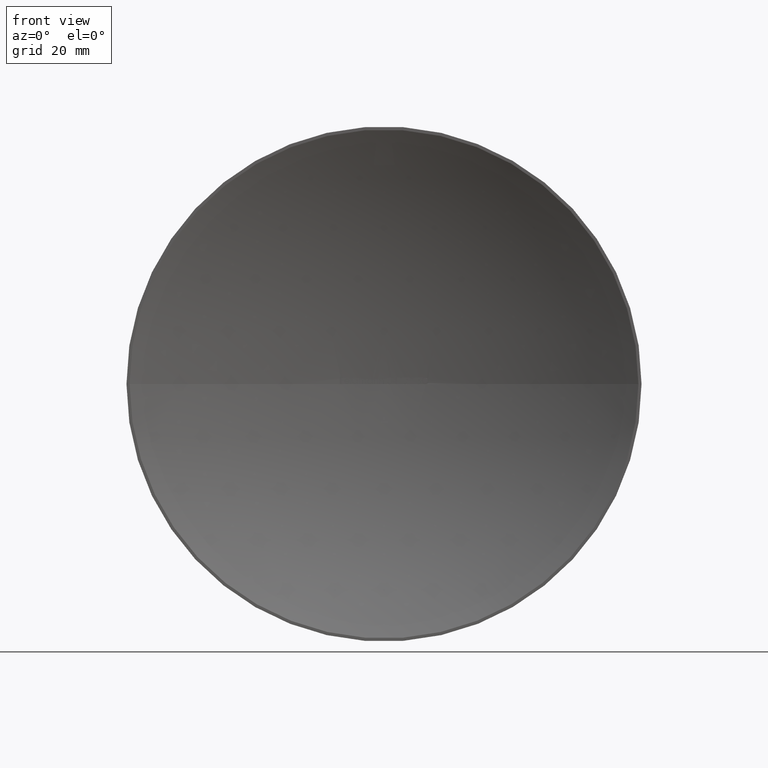
[diagram: clean part render]
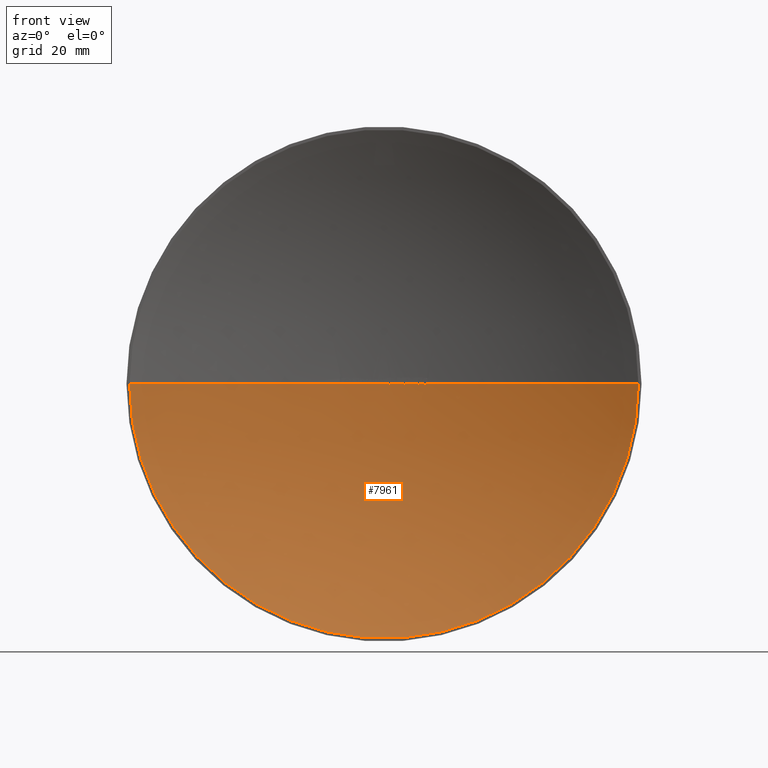
[diagram: same view with one face highlighted and labeled with its STEP entity id]
A machine part, front view. The second image highlights one B-rep face of the part: STEP entity #7961.
In plain terms, the highlighted spherical surface has radius 106.976 mm.
Its self-contained STEP definition (entity closure, byte-faithful):
#105 = ORIENTED_EDGE ( 'NONE', *, *, #5151, .T. ) ;
#137 = DIRECTION ( 'NONE',  ( 0.0000000000000000000, 0.0000000000000000000, 1.000000000000000000 ) ) ;
#160 = CIRCLE ( 'NONE', #4037, 106.9755999999999400 ) ;
#172 = CARTESIAN_POINT ( 'NONE',  ( 6.949399358774995200, 12.27404042112055300, -0.01180589762891991700 ) ) ;
#191 = CARTESIAN_POINT ( 'NONE',  ( 4.148159972622900100, 12.41953840007572700, -0.03392094017094046700 ) ) ;
#236 = DIRECTION ( 'NONE',  ( 0.0000000000000000000, 0.0000000000000000000, 1.000000000000000000 ) ) ;
#245 = CARTESIAN_POINT ( 'NONE',  ( 2.375217162707880600E-014, -94.47559999999997200, 0.0000000000000000000 ) ) ;
#262 = SPHERICAL_SURFACE ( 'NONE', #3462, 106.9755999999999400 ) ;
#278 = ORIENTED_EDGE ( 'NONE', *, *, #3818, .T. ) ;
#288 = EDGE_CURVE ( 'NONE', #10709, #4969, #4217, .T. ) ;
#310 = CARTESIAN_POINT ( 'NONE',  ( -0.8904246794871519800, 12.49629415566203000, 0.0000000000000000000 ) ) ;
#311 = AXIS2_PLACEMENT_3D ( 'NONE', #3212, #4125, #1488 ) ;
#320 = CARTESIAN_POINT ( 'NONE',  ( 1.042775204283239700, 12.49491342261517500, -0.03273920460104101600 ) ) ;
#331 = DIRECTION ( 'NONE',  ( 0.0000000000000000000, 0.0000000000000000000, -1.000000000000000000 ) ) ;
#352 = CARTESIAN_POINT ( 'NONE',  ( 2.375217162707880600E-014, -94.47559999999997200, 0.0000000000000000000 ) ) ;
#387 = CARTESIAN_POINT ( 'NONE',  ( -7.340968466212571800, 12.24782240427133000, -0.01696047008547008400 ) ) ;
#437 = ORIENTED_EDGE ( 'NONE', *, *, #9502, .T. ) ;
#461 = VERTEX_POINT ( 'NONE', #310 ) ;
#475 = ORIENTED_EDGE ( 'NONE', *, *, #10505, .T. ) ;
#483 = B_SPLINE_CURVE_WITH_KNOTS ( 'NONE', 3,
 ( #4640, #4564, #2063, #191 ),
 .UNSPECIFIED., .F., .F.,
 ( 4, 4 ),
 ( 0.8210215158304233800, 1.000000000000000000 ),
 .UNSPECIFIED. ) ;
#498 = EDGE_CURVE ( 'NONE', #4317, #5078, #904, .T. ) ;
#509 = CARTESIAN_POINT ( 'NONE',  ( 1.200285892570050100, 12.49326879481535700, -0.02052168815947426300 ) ) ;
#542 = CARTESIAN_POINT ( 'NONE',  ( 2.375217162707880600E-014, -94.47559999999997200, 0.0000000000000000000 ) ) ;
#557 = CARTESIAN_POINT ( 'NONE',  ( -4.977897970085426700, 12.38411891765117200, 0.0000000000000000000 ) ) ;
#574 = CIRCLE ( 'NONE', #9620, 106.9755999999999400 ) ;
#588 = CARTESIAN_POINT ( 'NONE',  ( -7.244980974753807400, 12.25438511509070100, -0.01038120295026404500 ) ) ;
#640 = ORIENTED_EDGE ( 'NONE', *, *, #4730, .T. ) ;
#649 = DIRECTION ( 'NONE',  ( 0.0000000000000000000, 0.0000000000000000000, 1.000000000000000000 ) ) ;
#658 = CARTESIAN_POINT ( 'NONE',  ( -7.292620545551372400, 12.25113772328137300, -0.01529940098956824800 ) ) ;
#666 = ORIENTED_EDGE ( 'NONE', *, *, #4578, .T. ) ;
#712 = EDGE_CURVE ( 'NONE', #10598, #2278, #2421, .T. ) ;
#717 = CIRCLE ( 'NONE', #7633, 106.9755999999999400 ) ;
#781 = CARTESIAN_POINT ( 'NONE',  ( -5.713026807523755600, 12.34733861283238300, -0.01493495719703120800 ) ) ;
#806 = CARTESIAN_POINT ( 'NONE',  ( -7.198456856984935600, 12.25753073786590600, -2.040139820884557600E-006 ) ) ;
#904 = B_SPLINE_CURVE_WITH_KNOTS ( 'NONE', 3,
 ( #387, #3998, #9215, #8489 ),
 .UNSPECIFIED., .F., .F.,
 ( 4, 4 ),
 ( 0.0000000000000000000, 0.1804175335167329500 ),
 .UNSPECIFIED. ) ;
#918 = EDGE_CURVE ( 'NONE', #2316, #9551, #7714, .T. ) ;
#928 = CARTESIAN_POINT ( 'NONE',  ( 8.047467951831629700, 12.19687915123589800, -0.03082004642137312100 ) ) ;
#1024 = CARTESIAN_POINT ( 'NONE',  ( -2.794767461271327600, 12.46348538294063800, -0.01696047008546994200 ) ) ;
#1036 = DIRECTION ( 'NONE',  ( 1.000000000000000000, 0.0000000000000000000, 0.0000000000000000000 ) ) ;
#1045 = EDGE_CURVE ( 'NONE', #11111, #3886, #6612, .T. ) ;
#1069 = EDGE_CURVE ( 'NONE', #1082, #3193, #10062, .T. ) ;
#1082 = VERTEX_POINT ( 'NONE', #10792 ) ;
#1091 = VERTEX_POINT ( 'NONE', #2692 ) ;
#1101 = DIRECTION ( 'NONE',  ( 1.000000000000000000, 0.0000000000000000000, 0.0000000000000000000 ) ) ;
#1114 = ORIENTED_EDGE ( 'NONE', *, *, #10053, .T. ) ;
#1147 = VERTEX_POINT ( 'NONE', #9973 ) ;
#1183 = ORIENTED_EDGE ( 'NONE', *, *, #1839, .T. ) ;
#1259 = CARTESIAN_POINT ( 'NONE',  ( 1.107054812944463100, 12.49427154343077700, -0.03361714395392137500 ) ) ;
#1264 = DIRECTION ( 'NONE',  ( 0.0000000000000000000, 0.0000000000000000000, 1.000000000000000000 ) ) ;
#1331 = DIRECTION ( 'NONE',  ( 1.000000000000000000, 0.0000000000000000000, 0.0000000000000000000 ) ) ;
#1358 = CARTESIAN_POINT ( 'NONE',  ( 4.309630190505982800, 12.41315552903621200, 1.978433478149781800E-005 ) ) ;
#1407 = CARTESIAN_POINT ( 'NONE',  ( 50.18107212884156400, 1.425904197968325600E-016, -6.145408936036714700E-015 ) ) ;
#1437 = AXIS2_PLACEMENT_3D ( 'NONE', #9927, #8184, #1101 ) ;
#1466 = EDGE_CURVE ( 'NONE', #11450, #5381, #4199, .T. ) ;
#1476 = CARTESIAN_POINT ( 'NONE',  ( -0.04240117521364742500, 12.49999159687006400, 8.733821055733424700E-015 ) ) ;
#1488 = DIRECTION ( 'NONE',  ( -1.000000000000000000, 0.0000000000000000000, 1.224646799147353200E-016 ) ) ;
#1526 = DIRECTION ( 'NONE',  ( 0.0000000000000000000, -0.0000000000000000000, 1.000000000000000000 ) ) ;
#1547 = VERTEX_POINT ( 'NONE', #4883 ) ;
#1600 = CARTESIAN_POINT ( 'NONE',  ( 2.375217162707880600E-014, -94.47559999999997200, 0.0000000000000000000 ) ) ;
#1611 = AXIS2_PLACEMENT_3D ( 'NONE', #1711, #9652, #7958 ) ;
#1620 = DIRECTION ( 'NONE',  ( -1.000000000000000000, 0.0000000000000000000, 1.224646799147353200E-016 ) ) ;
#1638 = ORIENTED_EDGE ( 'NONE', *, *, #1069, .T. ) ;
#1677 = CARTESIAN_POINT ( 'NONE',  ( 1.033562929764629400E-012, 12.49999999999998400, 0.0000000000000000000 ) ) ;
#1711 = CARTESIAN_POINT ( 'NONE',  ( 2.375217162707880600E-014, -94.47559999999997200, 0.0000000000000000000 ) ) ;
#1752 = AXIS2_PLACEMENT_3D ( 'NONE', #7321, #4638, #2757 ) ;
#1813 = DIRECTION ( 'NONE',  ( 0.0000000000000000000, -0.0000000000000000000, 1.000000000000000000 ) ) ;
#1817 = ORIENTED_EDGE ( 'NONE', *, *, #8599, .T. ) ;
#1839 = EDGE_CURVE ( 'NONE', #8857, #8862, #3252, .T. ) ;
#1843 = CIRCLE ( 'NONE', #4209, 106.9755999999999400 ) ;
#1848 = CARTESIAN_POINT ( 'NONE',  ( 4.088556901278947100, 12.42185167083168700, -0.03290909261517934600 ) ) ;
#1862 = DIRECTION ( 'NONE',  ( 0.0000000000000000000, 0.0000000000000000000, 1.000000000000000000 ) ) ;
#1866 = AXIS2_PLACEMENT_3D ( 'NONE', #5643, #5685, #8383 ) ;
#1892 = CARTESIAN_POINT ( 'NONE',  ( -2.744931594861002900, 12.46477703052911900, -0.01493389963590632500 ) ) ;
#1907 = VERTEX_POINT ( 'NONE', #4866 ) ;
#1911 = CARTESIAN_POINT ( 'NONE',  ( -2.887977258056324500, 12.46101777088588800, -0.01015512436226423600 ) ) ;
#1940 = CARTESIAN_POINT ( 'NONE',  ( -2.794767461271327600, 12.46348538294063800, -0.01696047008546994200 ) ) ;
#2028 = CARTESIAN_POINT ( 'NONE',  ( -5.762849726228598300, 12.34466151781954800, -0.01696047008546952200 ) ) ;
#2063 = CARTESIAN_POINT ( 'NONE',  ( 4.207810849629722400, 12.41722387013399000, -0.03305475315214702300 ) ) ;
#2076 = ORIENTED_EDGE ( 'NONE', *, *, #1466, .F. ) ;
#2077 = CIRCLE ( 'NONE', #2792, 106.9755999999999400 ) ;
#2129 = CARTESIAN_POINT ( 'NONE',  ( -2.656448254260741500, 12.46701202722179000, -2.995091098060200400E-006 ) ) ;
#2171 = DIRECTION ( 'NONE',  ( 1.000000000000000000, 0.0000000000000000000, 0.0000000000000000000 ) ) ;
#2184 = ORIENTED_EDGE ( 'NONE', *, *, #9880, .T. ) ;
#2209 = VERTEX_POINT ( 'NONE', #9654 ) ;
#2269 = AXIS2_PLACEMENT_3D ( 'NONE', #8342, #7599, #2970 ) ;
#2278 = VERTEX_POINT ( 'NONE', #7999 ) ;
#2290 = DIRECTION ( 'NONE',  ( 1.000000000000000000, 0.0000000000000000000, 0.0000000000000000000 ) ) ;
#2309 = CARTESIAN_POINT ( 'NONE',  ( -7.340968466212571800, 12.24782240427133000, -0.01696047008547008400 ) ) ;
#2316 = VERTEX_POINT ( 'NONE', #1677 ) ;
#2347 = B_SPLINE_CURVE_WITH_KNOTS ( 'NONE', 3,
 ( #3623, #172, #2778, #9984, #10799, #9855, #6406, #6364 ),
 .UNSPECIFIED., .F., .F.,
 ( 4, 2, 2, 4 ),
 ( 0.7261542428535668900, 0.8630771214267816100, 0.9315385607133908100, 1.000000000000000000 ),
 .UNSPECIFIED. ) ;
#2381 = CARTESIAN_POINT ( 'NONE',  ( -7.312370081798397000, 12.24978626639914500, -0.01623643680249621200 ) ) ;
#2408 = B_SPLINE_CURVE_WITH_KNOTS ( 'NONE', 3,
 ( #4731, #11003, #320, #9975, #10876, #2939, #10063, #5520 ),
 .UNSPECIFIED., .F., .F.,
 ( 4, 2, 2, 4 ),
 ( 0.0000000000000000000, 0.07081117229904818100, 0.1416223445980963600, 0.2832446891961932800 ),
 .UNSPECIFIED. ) ;
#2410 = CARTESIAN_POINT ( 'NONE',  ( 2.375217162707880600E-014, -94.47559999999997200, 0.0000000000000000000 ) ) ;
#2421 = B_SPLINE_CURVE_WITH_KNOTS ( 'NONE', 3,
 ( #5413, #1848, #7232, #10685 ),
 .UNSPECIFIED., .F., .F.,
 ( 4, 4 ),
 ( 0.0000000000000000000, 0.1790386924725205800 ),
 .UNSPECIFIED. ) ;
#2494 = CARTESIAN_POINT ( 'NONE',  ( -6.504340277777737700, 12.30207815845629700, 6.936523063944332500E-015 ) ) ;
#2499 = VERTEX_POINT ( 'NONE', #557 ) ;
#2501 = CARTESIAN_POINT ( 'NONE',  ( 2.375217162707880600E-014, -94.47559999999997200, 0.0000000000000000000 ) ) ;
#2520 = DIRECTION ( 'NONE',  ( -1.224646799147353200E-016, 1.163520838236027800E-030, -1.000000000000000000 ) ) ;
#2538 = VERTEX_POINT ( 'NONE', #7918 ) ;
#2560 = DIRECTION ( 'NONE',  ( 0.0000000000000000000, -0.0000000000000000000, 1.000000000000000000 ) ) ;
#2610 = AXIS2_PLACEMENT_3D ( 'NONE', #2410, #8637, #9513 ) ;
#2617 = DIRECTION ( 'NONE',  ( 1.000000000000000000, 0.0000000000000000000, 0.0000000000000000000 ) ) ;
#2679 = CARTESIAN_POINT ( 'NONE',  ( 3.214009081196612400, 12.45170774215715400, 6.350607961708001800E-015 ) ) ;
#2691 = DIRECTION ( 'NONE',  ( 1.000000000000000000, 0.0000000000000000000, 0.0000000000000000000 ) ) ;
#2692 = CARTESIAN_POINT ( 'NONE',  ( -2.009815705128162700, 12.48111851824650900, 0.0000000000000000000 ) ) ;
#2719 = CARTESIAN_POINT ( 'NONE',  ( 7.890691745383779000, 12.20858779102908700, 8.910561708030538400E-006 ) ) ;
#2730 = DIRECTION ( 'NONE',  ( -1.000000000000000000, 0.0000000000000000000, 1.224646799147353200E-016 ) ) ;
#2733 = CARTESIAN_POINT ( 'NONE',  ( -7.480724997645672200, 12.23811848969764400, -2.433873133199654500E-006 ) ) ;
#2756 = B_SPLINE_CURVE_WITH_KNOTS ( 'NONE', 3,
 ( #3676, #7282, #6341, #2799, #1892, #9919, #3599, #1940 ),
 .UNSPECIFIED., .F., .F.,
 ( 4, 2, 2, 4 ),
 ( 0.6916504621448700300, 0.8458252310724334600, 0.9229126155362167300, 1.000000000000000000 ),
 .UNSPECIFIED. ) ;
#2757 = DIRECTION ( 'NONE',  ( 1.000000000000000000, 0.0000000000000000000, 0.0000000000000000000 ) ) ;
#2778 = CARTESIAN_POINT ( 'NONE',  ( 6.917684328391416700, 12.27609860780938100, -0.02082694302990532500 ) ) ;
#2792 = AXIS2_PLACEMENT_3D ( 'NONE', #5454, #137, #5494 ) ;
#2797 = VERTEX_POINT ( 'NONE', #6578 ) ;
#2799 = CARTESIAN_POINT ( 'NONE',  ( -2.736586833324565300, 12.46499108556966500, -0.01425359407299078000 ) ) ;
#2814 = CARTESIAN_POINT ( 'NONE',  ( 4.148159972622900100, 12.41953840007572700, -0.03392094017094046700 ) ) ;
#2828 = DIRECTION ( 'NONE',  ( 0.0000000000000000000, 0.0000000000000000000, 1.000000000000000000 ) ) ;
#2835 = AXIS2_PLACEMENT_3D ( 'NONE', #6764, #7543, #2290 ) ;
#2858 = DIRECTION ( 'NONE',  ( 1.000000000000000000, 0.0000000000000000000, 0.0000000000000000000 ) ) ;
#2919 = VERTEX_POINT ( 'NONE', #11178 ) ;
#2939 = CARTESIAN_POINT ( 'NONE',  ( 0.9580988751103320900, 12.49571178310037000, -0.01999935738926644800 ) ) ;
#2970 = DIRECTION ( 'NONE',  ( -1.000000000000000000, 0.0000000000000000000, 1.224646799147353200E-016 ) ) ;
#3051 = CARTESIAN_POINT ( 'NONE',  ( -5.856480492857546200, 12.33957795343908800, -0.01005897904480453600 ) ) ;
#3054 = ORIENTED_EDGE ( 'NONE', *, *, #10143, .T. ) ;
#3131 = CARTESIAN_POINT ( 'NONE',  ( 6.609161831639927900, 12.29564131015096600, 8.892428765946643800E-006 ) ) ;
#3193 = VERTEX_POINT ( 'NONE', #9940 ) ;
#3212 = CARTESIAN_POINT ( 'NONE',  ( 2.375217162707880600E-014, -94.47559999999997200, 0.0000000000000000000 ) ) ;
#3252 = CIRCLE ( 'NONE', #2835, 106.9755999999999400 ) ;
#3279 = EDGE_CURVE ( 'NONE', #2797, #3860, #2347, .T. ) ;
#3285 = CARTESIAN_POINT ( 'NONE',  ( 8.366402135200667400, 12.17233622316174100, -4.592516816359981900E-006 ) ) ;
#3319 = AXIS2_PLACEMENT_3D ( 'NONE', #4460, #4315, #2730 ) ;
#3335 = AXIS2_PLACEMENT_3D ( 'NONE', #5441, #8907, #4459 ) ;
#3351 = CARTESIAN_POINT ( 'NONE',  ( 2.375217162707880600E-014, -94.47559999999997200, 0.0000000000000000000 ) ) ;
#3356 = CARTESIAN_POINT ( 'NONE',  ( -5.624512188207589200, 12.35203615834650000, -6.489038601300990400E-007 ) ) ;
#3392 = CARTESIAN_POINT ( 'NONE',  ( 1.073544754941271300, 12.49460775145271500, -0.03392094017094019600 ) ) ;
#3409 = EDGE_CURVE ( 'NONE', #6861, #1907, #5735, .T. ) ;
#3420 = AXIS2_PLACEMENT_3D ( 'NONE', #9891, #10760, #5519 ) ;
#3462 = AXIS2_PLACEMENT_3D ( 'NONE', #10081, #331, #11060 ) ;
#3482 = EDGE_CURVE ( 'NONE', #3886, #6754, #4892, .T. ) ;
#3489 = CIRCLE ( 'NONE', #5063, 106.9755999999999400 ) ;
#3527 = EDGE_CURVE ( 'NONE', #5800, #8857, #10753, .T. ) ;
#3529 = CARTESIAN_POINT ( 'NONE',  ( 8.088950906163859100, 12.19374304041545400, -0.03361015338668267600 ) ) ;
#3544 = EDGE_CURVE ( 'NONE', #2919, #4856, #7493, .T. ) ;
#3572 = ORIENTED_EDGE ( 'NONE', *, *, #7427, .T. ) ;
#3586 = EDGE_CURVE ( 'NONE', #2538, #1091, #8519, .T. ) ;
#3591 = ORIENTED_EDGE ( 'NONE', *, *, #918, .T. ) ;
#3599 = CARTESIAN_POINT ( 'NONE',  ( -2.779503270386290300, 12.46388435647885900, -0.01660663190880892400 ) ) ;
#3611 = AXIS2_PLACEMENT_3D ( 'NONE', #5843, #5726, #4926 ) ;
#3623 = CARTESIAN_POINT ( 'NONE',  ( 6.979103581477026800, 12.27209831557025600, 5.783628188999114700E-007 ) ) ;
#3633 = CIRCLE ( 'NONE', #10356, 106.9755999999999400 ) ;
#3652 = AXIS2_PLACEMENT_3D ( 'NONE', #8810, #1813, #7896 ) ;
#3676 = CARTESIAN_POINT ( 'NONE',  ( -2.656448254260741500, 12.46701202722179000, -2.995091098060200400E-006 ) ) ;
#3690 = VERTEX_POINT ( 'NONE', #9883 ) ;
#3702 = EDGE_CURVE ( 'NONE', #6861, #5381, #10204, .T. ) ;
#3722 = AXIS2_PLACEMENT_3D ( 'NONE', #8856, #1862, #8103 ) ;
#3772 = DIRECTION ( 'NONE',  ( 1.000000000000000000, 0.0000000000000000000, 0.0000000000000000000 ) ) ;
#3775 = EDGE_CURVE ( 'NONE', #6500, #4424, #8427, .T. ) ;
#3818 = EDGE_CURVE ( 'NONE', #6208, #5800, #5150, .T. ) ;
#3824 = AXIS2_PLACEMENT_3D ( 'NONE', #7253, #236, #3772 ) ;
#3845 = EDGE_CURVE ( 'NONE', #6500, #4969, #10348, .T. ) ;
#3855 = CARTESIAN_POINT ( 'NONE',  ( 2.375217162707880600E-014, -94.47559999999997200, 0.0000000000000000000 ) ) ;
#3860 = VERTEX_POINT ( 'NONE', #6748 ) ;
#3886 = VERTEX_POINT ( 'NONE', #11269 ) ;
#3887 = CARTESIAN_POINT ( 'NONE',  ( -4.316439636752097200, 12.41288087713790000, 0.0000000000000000000 ) ) ;
#3888 = ORIENTED_EDGE ( 'NONE', *, *, #4540, .T. ) ;
#3927 = EDGE_CURVE ( 'NONE', #2209, #9976, #160, .T. ) ;
#3934 = CARTESIAN_POINT ( 'NONE',  ( -5.811904961521313400, 12.34201524679262000, -0.01562877741242099300 ) ) ;
#3993 = ORIENTED_EDGE ( 'NONE', *, *, #5241, .T. ) ;
#3998 = CARTESIAN_POINT ( 'NONE',  ( -7.392990024895191000, 12.24424429539409700, -0.01574607338325323400 ) ) ;
#4019 = CIRCLE ( 'NONE', #5928, 106.9755999999999400 ) ;
#4037 = AXIS2_PLACEMENT_3D ( 'NONE', #8808, #2520, #1620 ) ;
#4125 = DIRECTION ( 'NONE',  ( -1.224646799147353200E-016, 1.163520838236027800E-030, -1.000000000000000000 ) ) ;
#4157 = VERTEX_POINT ( 'NONE', #4659 ) ;
#4165 = CARTESIAN_POINT ( 'NONE',  ( 8.173038286167345800, 12.18732569010776400, -0.03335398237185288600 ) ) ;
#4181 = VERTEX_POINT ( 'NONE', #2129 ) ;
#4199 = CIRCLE ( 'NONE', #7984, 106.9755999999999400 ) ;
#4209 = AXIS2_PLACEMENT_3D ( 'NONE', #11460, #2560, #7041 ) ;
#4217 = CIRCLE ( 'NONE', #5049, 106.9755999999999400 ) ;
#4239 = AXIS2_PLACEMENT_3D ( 'NONE', #542, #8494, #5070 ) ;
#4289 = EDGE_CURVE ( 'NONE', #8862, #9352, #8778, .T. ) ;
#4298 = DIRECTION ( 'NONE',  ( 0.0000000000000000000, -0.0000000000000000000, 1.000000000000000000 ) ) ;
#4315 = DIRECTION ( 'NONE',  ( -1.224646799147353200E-016, 1.163520838236027800E-030, -1.000000000000000000 ) ) ;
#4317 = VERTEX_POINT ( 'NONE', #6009 ) ;
#4324 = EDGE_CURVE ( 'NONE', #3193, #6208, #3489, .T. ) ;
#4424 = VERTEX_POINT ( 'NONE', #8788 ) ;
#4431 = DIRECTION ( 'NONE',  ( 0.0000000000000000000, -0.0000000000000000000, 1.000000000000000000 ) ) ;
#4437 = CIRCLE ( 'NONE', #3824, 106.9755999999999400 ) ;
#4459 = DIRECTION ( 'NONE',  ( 1.000000000000000000, 0.0000000000000000000, 0.0000000000000000000 ) ) ;
#4460 = CARTESIAN_POINT ( 'NONE',  ( 2.375217162707880600E-014, -94.47559999999997200, 0.0000000000000000000 ) ) ;
#4506 = EDGE_CURVE ( 'NONE', #10830, #6139, #574, .T. ) ;
#4527 = DIRECTION ( 'NONE',  ( 0.0000000000000000000, 0.0000000000000000000, 1.000000000000000000 ) ) ;
#4540 = EDGE_CURVE ( 'NONE', #6754, #9248, #9901, .T. ) ;
#4564 = CARTESIAN_POINT ( 'NONE',  ( 4.259123167012391200, 12.41519203191840100, -0.02261634065906757000 ) ) ;
#4578 = EDGE_CURVE ( 'NONE', #5680, #9976, #10205, .T. ) ;
#4601 = EDGE_CURVE ( 'NONE', #8913, #5501, #717, .T. ) ;
#4638 = DIRECTION ( 'NONE',  ( 0.0000000000000000000, -0.0000000000000000000, 1.000000000000000000 ) ) ;
#4640 = CARTESIAN_POINT ( 'NONE',  ( 4.309630190505982800, 12.41315552903621200, 1.978433478149781800E-005 ) ) ;
#4659 = CARTESIAN_POINT ( 'NONE',  ( -2.281183226495688800, 12.47567487995245900, 0.0000000000000000000 ) ) ;
#4668 = ORIENTED_EDGE ( 'NONE', *, *, #1045, .T. ) ;
#4678 = DIRECTION ( 'NONE',  ( -1.000000000000000000, 0.0000000000000000000, 1.224646799147353200E-016 ) ) ;
#4701 = EDGE_LOOP ( 'NONE', ( #7826, #3591, #7816, #7262, #475, #5912, #1817, #1114, #6288, #640, #3572, #10840, #6525, #1638, #10588, #278, #10912, #1183, #4795, #6792, #10820, #4975, #4668, #7737, #3888, #3054, #11047, #11277, #4801, #4837, #9658, #5984, #7422, #666, #8108, #11403, #5937, #7962, #11125, #3993, #10994, #11001, #8844, #8860, #11560, #8703, #105, #8443, #6649, #2076, #437, #2184 ) ) ;
#4730 = EDGE_CURVE ( 'NONE', #1091, #4157, #10195, .T. ) ;
#4731 = CARTESIAN_POINT ( 'NONE',  ( 1.073544754941271300, 12.49460775145271500, -0.03392094017094019600 ) ) ;
#4752 = CIRCLE ( 'NONE', #6234, 106.9755999999999400 ) ;
#4759 = DIRECTION ( 'NONE',  ( -1.224646799147353200E-016, 1.163520838236027800E-030, -1.000000000000000000 ) ) ;
#4795 = ORIENTED_EDGE ( 'NONE', *, *, #4289, .T. ) ;
#4801 = ORIENTED_EDGE ( 'NONE', *, *, #9549, .T. ) ;
#4837 = ORIENTED_EDGE ( 'NONE', *, *, #498, .T. ) ;
#4856 = VERTEX_POINT ( 'NONE', #9507 ) ;
#4866 = CARTESIAN_POINT ( 'NONE',  ( 3.095285790598324200, 12.45521034591721900, -1.895315917950622900E-016 ) ) ;
#4883 = CARTESIAN_POINT ( 'NONE',  ( -2.399906517093972200, 12.47307668217875000, 1.469518917206635100E-016 ) ) ;
#4892 = B_SPLINE_CURVE_WITH_KNOTS ( 'NONE', 3,
 ( #3356, #11388, #6977, #6044, #781, #6939, #9567, #8649 ),
 .UNSPECIFIED., .F., .F.,
 ( 4, 2, 2, 4 ),
 ( 0.6915283832769459900, 0.8457641916384758300, 0.9228820958192378600, 1.000000000000000000 ),
 .UNSPECIFIED. ) ;
#4926 = DIRECTION ( 'NONE',  ( 1.000000000000000000, 0.0000000000000000000, 0.0000000000000000000 ) ) ;
#4936 = VERTEX_POINT ( 'NONE', #6206 ) ;
#4969 = VERTEX_POINT ( 'NONE', #10679 ) ;
#4975 = ORIENTED_EDGE ( 'NONE', *, *, #10841, .T. ) ;
#5017 = CARTESIAN_POINT ( 'NONE',  ( 8.290377503902924200, 12.17827840261805500, -0.02041404735834095500 ) ) ;
#5048 = DIRECTION ( 'NONE',  ( 1.000000000000000000, 0.0000000000000000000, 0.0000000000000000000 ) ) ;
#5049 = AXIS2_PLACEMENT_3D ( 'NONE', #10662, #6150, #6226 ) ;
#5054 = CARTESIAN_POINT ( 'NONE',  ( 8.133605435363282500, 12.19033789655460400, -0.03392094017094016800 ) ) ;
#5063 = AXIS2_PLACEMENT_3D ( 'NONE', #1600, #1526, #8650 ) ;
#5070 = DIRECTION ( 'NONE',  ( 1.000000000000000000, 0.0000000000000000000, 0.0000000000000000000 ) ) ;
#5078 = VERTEX_POINT ( 'NONE', #2733 ) ;
#5095 = EDGE_CURVE ( 'NONE', #4936, #11122, #6845, .T. ) ;
#5113 = CARTESIAN_POINT ( 'NONE',  ( 2.298143696581233200, 12.47531178157323400, 0.0000000000000000000 ) ) ;
#5129 = CARTESIAN_POINT ( 'NONE',  ( 2.416866987179522800, 12.47269474716405200, 9.694612783270156900E-015 ) ) ;
#5150 = CIRCLE ( 'NONE', #4239, 106.9755999999999400 ) ;
#5151 = EDGE_CURVE ( 'NONE', #8615, #1907, #4437, .T. ) ;
#5241 = EDGE_CURVE ( 'NONE', #3860, #4424, #6486, .T. ) ;
#5311 = CARTESIAN_POINT ( 'NONE',  ( 7.929298525734100000, 12.20573257086125100, -0.01174482650463736500 ) ) ;
#5350 = CARTESIAN_POINT ( 'NONE',  ( 2.375217162707880600E-014, -94.47559999999997200, 0.0000000000000000000 ) ) ;
#5381 = VERTEX_POINT ( 'NONE', #5113 ) ;
#5412 = CARTESIAN_POINT ( 'NONE',  ( 2.375217162707880600E-014, -94.47559999999997200, 0.0000000000000000000 ) ) ;
#5413 = CARTESIAN_POINT ( 'NONE',  ( 4.148159972622900100, 12.41953840007572700, -0.03392094017094046700 ) ) ;
#5441 = CARTESIAN_POINT ( 'NONE',  ( 2.375217162707880600E-014, -94.47559999999997200, 0.0000000000000000000 ) ) ;
#5454 = CARTESIAN_POINT ( 'NONE',  ( 2.375217162707880600E-014, -94.47559999999997200, 0.0000000000000000000 ) ) ;
#5479 = CARTESIAN_POINT ( 'NONE',  ( -2.928429275397376900, 12.45990993638604400, -1.662759630222017200E-006 ) ) ;
#5484 = AXIS2_PLACEMENT_3D ( 'NONE', #3351, #4298, #5048 ) ;
#5494 = DIRECTION ( 'NONE',  ( 1.000000000000000000, 0.0000000000000000000, 0.0000000000000000000 ) ) ;
#5501 = VERTEX_POINT ( 'NONE', #806 ) ;
#5519 = DIRECTION ( 'NONE',  ( 1.000000000000000000, 0.0000000000000000000, 0.0000000000000000000 ) ) ;
#5520 = CARTESIAN_POINT ( 'NONE',  ( 0.9062174166542744700, 12.49616148490513400, 9.632784591580273500E-006 ) ) ;
#5563 = DIRECTION ( 'NONE',  ( -1.224646799147353200E-016, 1.163520838236027800E-030, -1.000000000000000000 ) ) ;
#5643 = CARTESIAN_POINT ( 'NONE',  ( -1.187608581353896100E-013, 4.770489558936219500E-013, 0.0000000000000000000 ) ) ;
#5680 = VERTEX_POINT ( 'NONE', #11186 ) ;
#5685 = DIRECTION ( 'NONE',  ( -9.500868650831540200E-015, -1.000000000000000000, -0.0000000000000000000 ) ) ;
#5726 = DIRECTION ( 'NONE',  ( 0.0000000000000000000, -0.0000000000000000000, 1.000000000000000000 ) ) ;
#5727 = VERTEX_POINT ( 'NONE', #11145 ) ;
#5735 = CIRCLE ( 'NONE', #311, 106.9755999999999400 ) ;
#5768 = CIRCLE ( 'NONE', #9874, 106.9755999999999400 ) ;
#5800 = VERTEX_POINT ( 'NONE', #8413 ) ;
#5804 = CARTESIAN_POINT ( 'NONE',  ( -7.198456856984935600, 12.25753073786590600, -2.040139820884557600E-006 ) ) ;
#5816 = CARTESIAN_POINT ( 'NONE',  ( 2.375217162707880600E-014, -94.47559999999997200, 0.0000000000000000000 ) ) ;
#5843 = CARTESIAN_POINT ( 'NONE',  ( 2.375217162707880600E-014, -94.47559999999997200, 0.0000000000000000000 ) ) ;
#5912 = ORIENTED_EDGE ( 'NONE', *, *, #11336, .T. ) ;
#5927 = CARTESIAN_POINT ( 'NONE',  ( 8.212273981103583900, 12.18431276008412200, -0.03082465379759732900 ) ) ;
#5928 = AXIS2_PLACEMENT_3D ( 'NONE', #6135, #10612, #2617 ) ;
#5937 = ORIENTED_EDGE ( 'NONE', *, *, #3544, .T. ) ;
#5984 = ORIENTED_EDGE ( 'NONE', *, *, #5095, .T. ) ;
#6009 = CARTESIAN_POINT ( 'NONE',  ( -7.340968466212571800, 12.24782240427133000, -0.01696047008547008400 ) ) ;
#6044 = CARTESIAN_POINT ( 'NONE',  ( -5.704683116103125500, 12.34778470266152100, -0.01425385021501584900 ) ) ;
#6072 = CARTESIAN_POINT ( 'NONE',  ( -0.7717013888888611900, 12.49721651114166200, 8.733594489076448200E-015 ) ) ;
#6135 = CARTESIAN_POINT ( 'NONE',  ( 2.375217162707880600E-014, -94.47559999999997200, 0.0000000000000000000 ) ) ;
#6139 = VERTEX_POINT ( 'NONE', #6072 ) ;
#6140 = CARTESIAN_POINT ( 'NONE',  ( 5.249265491453027000, 12.37113231858912100, 6.221050627566643600E-015 ) ) ;
#6150 = DIRECTION ( 'NONE',  ( -1.224646799147353200E-016, 1.163520838236027800E-030, -1.000000000000000000 ) ) ;
#6164 = AXIS2_PLACEMENT_3D ( 'NONE', #3855, #1264, #2858 ) ;
#6176 = CARTESIAN_POINT ( 'NONE',  ( 2.375217162707880600E-014, -94.47559999999997200, 0.0000000000000000000 ) ) ;
#6206 = CARTESIAN_POINT ( 'NONE',  ( -8.522636217948679900, 12.15996473923933900, 7.573267068119929700E-015 ) ) ;
#6208 = VERTEX_POINT ( 'NONE', #9525 ) ;
#6226 = DIRECTION ( 'NONE',  ( -1.000000000000000000, 0.0000000000000000000, 1.224646799147353200E-016 ) ) ;
#6234 = AXIS2_PLACEMENT_3D ( 'NONE', #6176, #4431, #8010 ) ;
#6274 = DIRECTION ( 'NONE',  ( 0.0000000000000000000, -0.0000000000000000000, 1.000000000000000000 ) ) ;
#6288 = ORIENTED_EDGE ( 'NONE', *, *, #3586, .T. ) ;
#6295 = CIRCLE ( 'NONE', #3335, 106.9755999999999400 ) ;
#6303 = CIRCLE ( 'NONE', #1611, 106.9755999999999400 ) ;
#6341 = CARTESIAN_POINT ( 'NONE',  ( -2.701727299629992400, 12.46587984400889900, -0.01009262348180002700 ) ) ;
#6364 = CARTESIAN_POINT ( 'NONE',  ( 6.792933276575897800, 12.28410167731737900, -0.03392094017094003000 ) ) ;
#6406 = CARTESIAN_POINT ( 'NONE',  ( 6.812455811145840200, 12.28285968275571900, -0.03332231777678175400 ) ) ;
#6478 = DIRECTION ( 'NONE',  ( -1.000000000000000000, 0.0000000000000000000, 1.224646799147353200E-016 ) ) ;
#6486 = B_SPLINE_CURVE_WITH_KNOTS ( 'NONE', 3,
 ( #9929, #8459, #7604, #9262, #9376, #3131 ),
 .UNSPECIFIED., .F., .F.,
 ( 4, 2, 4 ),
 ( 0.0000000000000000000, 0.1450041468819493800, 0.2900082937638987500 ),
 .UNSPECIFIED. ) ;
#6500 = VERTEX_POINT ( 'NONE', #6140 ) ;
#6525 = ORIENTED_EDGE ( 'NONE', *, *, #10121, .T. ) ;
#6578 = CARTESIAN_POINT ( 'NONE',  ( 6.979103581477026800, 12.27209831557025600, 5.783628188999114700E-007 ) ) ;
#6591 = CIRCLE ( 'NONE', #5484, 106.9755999999999400 ) ;
#6612 = CIRCLE ( 'NONE', #3420, 106.9755999999999400 ) ;
#6649 = ORIENTED_EDGE ( 'NONE', *, *, #3702, .T. ) ;
#6748 = CARTESIAN_POINT ( 'NONE',  ( 6.792933276575897800, 12.28410167731737900, -0.03392094017094003000 ) ) ;
#6754 = VERTEX_POINT ( 'NONE', #7206 ) ;
#6764 = CARTESIAN_POINT ( 'NONE',  ( 2.375217162707880600E-014, -94.47559999999997200, 0.0000000000000000000 ) ) ;
#6792 = ORIENTED_EDGE ( 'NONE', *, *, #10651, .T. ) ;
#6819 = CARTESIAN_POINT ( 'NONE',  ( -7.280929595288813300, 12.25193626274899300, -0.01445587746118156100 ) ) ;
#6844 = EDGE_CURVE ( 'NONE', #11122, #5680, #9452, .T. ) ;
#6845 = CIRCLE ( 'NONE', #7264, 106.9755999999999400 ) ;
#6861 = VERTEX_POINT ( 'NONE', #5129 ) ;
#6939 = CARTESIAN_POINT ( 'NONE',  ( -5.734584753913178900, 12.34618331098206000, -0.01613069025042582600 ) ) ;
#6958 = EDGE_CURVE ( 'NONE', #8615, #2278, #8882, .T. ) ;
#6977 = CARTESIAN_POINT ( 'NONE',  ( -5.669915748961455100, 12.34963809948110300, -0.01010691471093892900 ) ) ;
#7040 = B_SPLINE_CURVE_WITH_KNOTS ( 'NONE', 3,
 ( #3285, #10376, #5017, #11289, #5927, #4165, #10410, #5054 ),
 .UNSPECIFIED., .F., .F.,
 ( 4, 2, 2, 4 ),
 ( 0.6454185496365694200, 0.8227092748182850400, 0.9113546374091425800, 1.000000000000000000 ),
 .UNSPECIFIED. ) ;
#7041 = DIRECTION ( 'NONE',  ( 1.000000000000000000, 0.0000000000000000000, 0.0000000000000000000 ) ) ;
#7082 = DIRECTION ( 'NONE',  ( 1.000000000000000000, 0.0000000000000000000, 0.0000000000000000000 ) ) ;
#7083 = DIRECTION ( 'NONE',  ( 1.000000000000000000, 0.0000000000000000000, 0.0000000000000000000 ) ) ;
#7128 = EDGE_CURVE ( 'NONE', #10709, #10598, #483, .T. ) ;
#7136 = DIRECTION ( 'NONE',  ( 0.0000000000000000000, -0.0000000000000000000, 1.000000000000000000 ) ) ;
#7206 = CARTESIAN_POINT ( 'NONE',  ( -5.762849726228598300, 12.34466151781954800, -0.01696047008546952200 ) ) ;
#7232 = CARTESIAN_POINT ( 'NONE',  ( 4.037339600193266900, 12.42379844537999600, -0.02275912325031137500 ) ) ;
#7253 = CARTESIAN_POINT ( 'NONE',  ( 2.375217162707880600E-014, -94.47559999999997200, 0.0000000000000000000 ) ) ;
#7256 = CARTESIAN_POINT ( 'NONE',  ( -2.843398178236261800, 12.46221466742788000, -0.01564030172666612500 ) ) ;
#7262 = ORIENTED_EDGE ( 'NONE', *, *, #4506, .T. ) ;
#7264 = AXIS2_PLACEMENT_3D ( 'NONE', #245, #8313, #9152 ) ;
#7282 = CARTESIAN_POINT ( 'NONE',  ( -2.679067782812660800, 12.46645020990967400, -0.005835729974099144700 ) ) ;
#7321 = CARTESIAN_POINT ( 'NONE',  ( 2.375217162707880600E-014, -94.47559999999997200, 0.0000000000000000000 ) ) ;
#7334 = CARTESIAN_POINT ( 'NONE',  ( 2.375217162707880600E-014, -94.47559999999997200, 0.0000000000000000000 ) ) ;
#7361 = EDGE_CURVE ( 'NONE', #5078, #4936, #4019, .T. ) ;
#7418 = AXIS2_PLACEMENT_3D ( 'NONE', #5816, #7581, #2171 ) ;
#7422 = ORIENTED_EDGE ( 'NONE', *, *, #6844, .T. ) ;
#7427 = EDGE_CURVE ( 'NONE', #4157, #1547, #2077, .T. ) ;
#7453 = CARTESIAN_POINT ( 'NONE',  ( -5.896539117441971500, 12.33736648676388900, 2.191878422854522800E-006 ) ) ;
#7454 = CARTESIAN_POINT ( 'NONE',  ( 1.073544754941271300, 12.49460775145271500, -0.03392094017094019600 ) ) ;
#7493 = B_SPLINE_CURVE_WITH_KNOTS ( 'NONE', 3,
 ( #9800, #3529, #928, #9679, #5311, #2719 ),
 .UNSPECIFIED., .F., .F.,
 ( 4, 2, 4 ),
 ( 0.0000000000000000000, 0.1997682575373439500, 0.3995365150746879000 ),
 .UNSPECIFIED. ) ;
#7518 = EDGE_CURVE ( 'NONE', #8509, #8913, #7925, .T. ) ;
#7543 = DIRECTION ( 'NONE',  ( 0.0000000000000000000, 0.0000000000000000000, 1.000000000000000000 ) ) ;
#7581 = DIRECTION ( 'NONE',  ( 0.0000000000000000000, -0.0000000000000000000, 1.000000000000000000 ) ) ;
#7599 = DIRECTION ( 'NONE',  ( -1.224646799147353200E-016, 1.163520838236027800E-030, -1.000000000000000000 ) ) ;
#7604 = CARTESIAN_POINT ( 'NONE',  ( 6.730753545192003500, 12.28804582704041200, -0.03098542549784718400 ) ) ;
#7615 = AXIS2_PLACEMENT_3D ( 'NONE', #7801, #8581, #7842 ) ;
#7633 = AXIS2_PLACEMENT_3D ( 'NONE', #10288, #10364, #1331 ) ;
#7714 = CIRCLE ( 'NONE', #7615, 106.9755999999999400 ) ;
#7737 = ORIENTED_EDGE ( 'NONE', *, *, #3482, .T. ) ;
#7801 = CARTESIAN_POINT ( 'NONE',  ( 2.375217162707880600E-014, -94.47559999999997200, 0.0000000000000000000 ) ) ;
#7811 = DIRECTION ( 'NONE',  ( 1.000000000000000000, 0.0000000000000000000, 0.0000000000000000000 ) ) ;
#7816 = ORIENTED_EDGE ( 'NONE', *, *, #9827, .T. ) ;
#7826 = ORIENTED_EDGE ( 'NONE', *, *, #8122, .F. ) ;
#7842 = DIRECTION ( 'NONE',  ( 1.000000000000000000, 0.0000000000000000000, 0.0000000000000000000 ) ) ;
#7896 = DIRECTION ( 'NONE',  ( 1.000000000000000000, 0.0000000000000000000, 0.0000000000000000000 ) ) ;
#7918 = CARTESIAN_POINT ( 'NONE',  ( -1.891092414529873300, 12.48328352465027400, 8.732456956589164700E-015 ) ) ;
#7925 = CIRCLE ( 'NONE', #8963, 106.9755999999999400 ) ;
#7958 = DIRECTION ( 'NONE',  ( 1.000000000000000000, 0.0000000000000000000, 0.0000000000000000000 ) ) ;
#7961 = ADVANCED_FACE ( 'NONE', ( #8492 ), #262, .F. ) ;
#7962 = ORIENTED_EDGE ( 'NONE', *, *, #9350, .F. ) ;
#7984 = AXIS2_PLACEMENT_3D ( 'NONE', #10047, #4759, #4678 ) ;
#7999 = CARTESIAN_POINT ( 'NONE',  ( 3.987341868081504300, 12.42566328292486600, 9.224025786744257600E-006 ) ) ;
#8010 = DIRECTION ( 'NONE',  ( 1.000000000000000000, 0.0000000000000000000, 0.0000000000000000000 ) ) ;
#8060 = CARTESIAN_POINT ( 'NONE',  ( 1.261121596360286200, 12.49256610853171200, -9.152410356796864800E-007 ) ) ;
#8103 = DIRECTION ( 'NONE',  ( 1.000000000000000000, 0.0000000000000000000, 0.0000000000000000000 ) ) ;
#8108 = ORIENTED_EDGE ( 'NONE', *, *, #3927, .F. ) ;
#8122 = EDGE_CURVE ( 'NONE', #2316, #1147, #8216, .T. ) ;
#8184 = DIRECTION ( 'NONE',  ( 0.0000000000000000000, 0.0000000000000000000, 1.000000000000000000 ) ) ;
#8216 = CIRCLE ( 'NONE', #3319, 106.9755999999999400 ) ;
#8235 = DIRECTION ( 'NONE',  ( -1.224646799147353200E-016, 1.163520838236027800E-030, -1.000000000000000000 ) ) ;
#8268 = DIRECTION ( 'NONE',  ( 1.000000000000000000, 0.0000000000000000000, 0.0000000000000000000 ) ) ;
#8304 = DIRECTION ( 'NONE',  ( 0.0000000000000000000, -0.0000000000000000000, 1.000000000000000000 ) ) ;
#8313 = DIRECTION ( 'NONE',  ( 0.0000000000000000000, 0.0000000000000000000, 1.000000000000000000 ) ) ;
#8342 = CARTESIAN_POINT ( 'NONE',  ( 2.375217162707880600E-014, -94.47559999999997200, 0.0000000000000000000 ) ) ;
#8383 = DIRECTION ( 'NONE',  ( 1.000000000000000000, -9.500868650831541800E-015, 0.0000000000000000000 ) ) ;
#8403 = CARTESIAN_POINT ( 'NONE',  ( -5.367988782051249100, 12.36523344768407300, 3.286945139899611800E-016 ) ) ;
#8413 = CARTESIAN_POINT ( 'NONE',  ( -3.654981303418764100, 12.43754281710951500, 2.238030577088244000E-016 ) ) ;
#8417 = AXIS2_PLACEMENT_3D ( 'NONE', #9096, #5563, #9928 ) ;
#8420 = B_SPLINE_CURVE_WITH_KNOTS ( 'NONE', 3,
 ( #10216, #9219, #509, #8458, #1259, #7454 ),
 .UNSPECIFIED., .F., .F.,
 ( 4, 2, 4 ),
 ( 0.7374772112526467600, 0.8687386056263233200, 1.000000000000000000 ),
 .UNSPECIFIED. ) ;
#8421 = CIRCLE ( 'NONE', #3611, 106.9755999999999400 ) ;
#8427 = CIRCLE ( 'NONE', #2269, 106.9755999999999400 ) ;
#8443 = ORIENTED_EDGE ( 'NONE', *, *, #3409, .F. ) ;
#8458 = CARTESIAN_POINT ( 'NONE',  ( 1.137864421677334100, 12.49394839455394500, -0.03129583154651933300 ) ) ;
#8459 = CARTESIAN_POINT ( 'NONE',  ( 6.758684526844579200, 12.28628112012345500, -0.03311930946521884900 ) ) ;
#8489 = CARTESIAN_POINT ( 'NONE',  ( -7.480724997645672200, 12.23811848969764400, -2.433873133199654500E-006 ) ) ;
#8492 = FACE_OUTER_BOUND ( 'NONE', #4701, .T. ) ;
#8494 = DIRECTION ( 'NONE',  ( 0.0000000000000000000, 0.0000000000000000000, 1.000000000000000000 ) ) ;
#8509 = VERTEX_POINT ( 'NONE', #2494 ) ;
#8519 = CIRCLE ( 'NONE', #3722, 106.9755999999999400 ) ;
#8581 = DIRECTION ( 'NONE',  ( 0.0000000000000000000, -0.0000000000000000000, 1.000000000000000000 ) ) ;
#8599 = EDGE_CURVE ( 'NONE', #3690, #10737, #5768, .T. ) ;
#8615 = VERTEX_POINT ( 'NONE', #2679 ) ;
#8637 = DIRECTION ( 'NONE',  ( 0.0000000000000000000, 0.0000000000000000000, 1.000000000000000000 ) ) ;
#8649 = CARTESIAN_POINT ( 'NONE',  ( -5.762849726228598300, 12.34466151781954800, -0.01696047008546952200 ) ) ;
#8650 = DIRECTION ( 'NONE',  ( 1.000000000000000000, 0.0000000000000000000, 0.0000000000000000000 ) ) ;
#8666 = CARTESIAN_POINT ( 'NONE',  ( -0.1611244658119313200, 12.49987865873988800, 0.0000000000000000000 ) ) ;
#8674 = CARTESIAN_POINT ( 'NONE',  ( -7.325194527398107200, 12.24890746623013800, -0.01663392610188841800 ) ) ;
#8703 = ORIENTED_EDGE ( 'NONE', *, *, #6958, .F. ) ;
#8778 = CIRCLE ( 'NONE', #7418, 106.9755999999999400 ) ;
#8788 = CARTESIAN_POINT ( 'NONE',  ( 6.609161831639927900, 12.29564131015096600, 8.892428765946643800E-006 ) ) ;
#8808 = CARTESIAN_POINT ( 'NONE',  ( 2.375217162707880600E-014, -94.47559999999997200, 0.0000000000000000000 ) ) ;
#8810 = CARTESIAN_POINT ( 'NONE',  ( 2.375217162707880600E-014, -94.47559999999997200, 0.0000000000000000000 ) ) ;
#8844 = ORIENTED_EDGE ( 'NONE', *, *, #288, .F. ) ;
#8856 = CARTESIAN_POINT ( 'NONE',  ( 2.375217162707880600E-014, -94.47559999999997200, 0.0000000000000000000 ) ) ;
#8857 = VERTEX_POINT ( 'NONE', #9240 ) ;
#8860 = ORIENTED_EDGE ( 'NONE', *, *, #7128, .T. ) ;
#8862 = VERTEX_POINT ( 'NONE', #3887 ) ;
#8882 = CIRCLE ( 'NONE', #10117, 106.9755999999999400 ) ;
#8907 = DIRECTION ( 'NONE',  ( 0.0000000000000000000, 0.0000000000000000000, 1.000000000000000000 ) ) ;
#8913 = VERTEX_POINT ( 'NONE', #9905 ) ;
#8943 = CIRCLE ( 'NONE', #8417, 106.9755999999999400 ) ;
#8963 = AXIS2_PLACEMENT_3D ( 'NONE', #5412, #2828, #1036 ) ;
#9096 = CARTESIAN_POINT ( 'NONE',  ( 2.375217162707880600E-014, -94.47559999999997200, 0.0000000000000000000 ) ) ;
#9120 = AXIS2_PLACEMENT_3D ( 'NONE', #2501, #7136, #2691 ) ;
#9125 = EDGE_CURVE ( 'NONE', #2209, #2919, #7040, .T. ) ;
#9152 = DIRECTION ( 'NONE',  ( 1.000000000000000000, 0.0000000000000000000, 0.0000000000000000000 ) ) ;
#9214 = VERTEX_POINT ( 'NONE', #3392 ) ;
#9215 = CARTESIAN_POINT ( 'NONE',  ( -7.439585008341740700, 12.24100260255201700, -0.01016236518395071700 ) ) ;
#9219 = CARTESIAN_POINT ( 'NONE',  ( 1.231758350648187700, 12.49291232500196200, -0.01179818706069213400 ) ) ;
#9240 = CARTESIAN_POINT ( 'NONE',  ( -4.197716346153805000, 12.41760919888798000, 8.727095099733767600E-015 ) ) ;
#9248 = VERTEX_POINT ( 'NONE', #9570 ) ;
#9262 = CARTESIAN_POINT ( 'NONE',  ( 6.666145462634374600, 12.29210195963081500, -0.01991468995495381700 ) ) ;
#9318 = CARTESIAN_POINT ( 'NONE',  ( -8.641359508546973000, 12.15040949676416600, 1.058261326242486600E-015 ) ) ;
#9350 = EDGE_CURVE ( 'NONE', #2797, #4856, #8943, .T. ) ;
#9352 = VERTEX_POINT ( 'NONE', #10014 ) ;
#9376 = CARTESIAN_POINT ( 'NONE',  ( 6.637979388469244000, 12.29385751874000300, -0.01203505591612258900 ) ) ;
#9452 = CIRCLE ( 'NONE', #9120, 106.9755999999999400 ) ;
#9457 = B_SPLINE_CURVE_WITH_KNOTS ( 'NONE', 3,
 ( #5804, #11044, #588, #6819, #658, #2381, #8674, #2309 ),
 .UNSPECIFIED., .F., .F.,
 ( 4, 2, 2, 4 ),
 ( 0.7370605357431343500, 0.8685302678715671700, 0.9342651339357835900, 1.000000000000000000 ),
 .UNSPECIFIED. ) ;
#9499 = EDGE_CURVE ( 'NONE', #1547, #4181, #8421, .T. ) ;
#9502 = EDGE_CURVE ( 'NONE', #11450, #9214, #8420, .T. ) ;
#9507 = CARTESIAN_POINT ( 'NONE',  ( 7.890691745383779000, 12.20858779102908700, 8.910561708030538400E-006 ) ) ;
#9513 = DIRECTION ( 'NONE',  ( 1.000000000000000000, 0.0000000000000000000, 0.0000000000000000000 ) ) ;
#9525 = CARTESIAN_POINT ( 'NONE',  ( -3.536258012820471900, 12.44153555191590000, 8.729048521843828600E-015 ) ) ;
#9549 = EDGE_CURVE ( 'NONE', #5501, #4317, #9457, .T. ) ;
#9551 = VERTEX_POINT ( 'NONE', #1476 ) ;
#9567 = CARTESIAN_POINT ( 'NONE',  ( -5.747599415751256700, 12.34548431344010700, -0.01660695366960119500 ) ) ;
#9570 = CARTESIAN_POINT ( 'NONE',  ( -5.896539117441971500, 12.33736648676388900, 2.191878422854522800E-006 ) ) ;
#9620 = AXIS2_PLACEMENT_3D ( 'NONE', #352, #8304, #8268 ) ;
#9652 = DIRECTION ( 'NONE',  ( 0.0000000000000000000, 0.0000000000000000000, 1.000000000000000000 ) ) ;
#9654 = CARTESIAN_POINT ( 'NONE',  ( 8.366402135200667400, 12.17233622316174100, -4.592516816359981900E-006 ) ) ;
#9658 = ORIENTED_EDGE ( 'NONE', *, *, #7361, .T. ) ;
#9659 = CARTESIAN_POINT ( 'NONE',  ( -1.280515491452946900, 12.49233573513582100, 7.840895989338560000E-017 ) ) ;
#9679 = CARTESIAN_POINT ( 'NONE',  ( 7.970831882349848700, 12.20263544545983900, -0.02049215036595733800 ) ) ;
#9775 = CIRCLE ( 'NONE', #6164, 106.9755999999999400 ) ;
#9800 = CARTESIAN_POINT ( 'NONE',  ( 8.133605435363282500, 12.19033789655460400, -0.03392094017094016800 ) ) ;
#9827 = EDGE_CURVE ( 'NONE', #9551, #10830, #9775, .T. ) ;
#9855 = CARTESIAN_POINT ( 'NONE',  ( 6.829936305371892200, 12.28174240400070100, -0.03239114715811117200 ) ) ;
#9874 = AXIS2_PLACEMENT_3D ( 'NONE', #9878, #4527, #7082 ) ;
#9878 = CARTESIAN_POINT ( 'NONE',  ( 2.375217162707880600E-014, -94.47559999999997200, 0.0000000000000000000 ) ) ;
#9880 = EDGE_CURVE ( 'NONE', #9214, #1147, #2408, .T. ) ;
#9883 = CARTESIAN_POINT ( 'NONE',  ( -1.161792200854659300, 12.49369108039385900, 8.733306661911053900E-015 ) ) ;
#9891 = CARTESIAN_POINT ( 'NONE',  ( 2.375217162707880600E-014, -94.47559999999997200, 0.0000000000000000000 ) ) ;
#9901 = B_SPLINE_CURVE_WITH_KNOTS ( 'NONE', 3,
 ( #2028, #3934, #3051, #7453 ),
 .UNSPECIFIED., .F., .F.,
 ( 4, 4 ),
 ( 0.0000000000000000000, 0.1700435713817171900 ),
 .UNSPECIFIED. ) ;
#9905 = CARTESIAN_POINT ( 'NONE',  ( -6.623063568376023700, 12.29477990158715700, 0.0000000000000000000 ) ) ;
#9919 = CARTESIAN_POINT ( 'NONE',  ( -2.766483311709192700, 12.46422149715808900, -0.01612933793398472000 ) ) ;
#9927 = CARTESIAN_POINT ( 'NONE',  ( 2.375217162707880600E-014, -94.47559999999997200, 0.0000000000000000000 ) ) ;
#9928 = DIRECTION ( 'NONE',  ( -1.000000000000000000, 0.0000000000000000000, 1.224646799147353200E-016 ) ) ;
#9929 = CARTESIAN_POINT ( 'NONE',  ( 6.792933276575897800, 12.28410167731737900, -0.03392094017094003000 ) ) ;
#9940 = CARTESIAN_POINT ( 'NONE',  ( -2.928429275397376900, 12.45990993638604400, -1.662759630222017200E-006 ) ) ;
#9973 = CARTESIAN_POINT ( 'NONE',  ( 0.9062174166542744700, 12.49616148490513400, 9.632784591580273500E-006 ) ) ;
#9975 = CARTESIAN_POINT ( 'NONE',  ( 1.014726837846111800, 12.49518396011057700, -0.03003804227138951600 ) ) ;
#9976 = VERTEX_POINT ( 'NONE', #1407 ) ;
#9984 = CARTESIAN_POINT ( 'NONE',  ( 6.872192391672078800, 12.27903168533362400, -0.02860858184399886100 ) ) ;
#10014 = CARTESIAN_POINT ( 'NONE',  ( -4.859174679487137100, 12.38958337042344700, 8.724806983658932900E-015 ) ) ;
#10047 = CARTESIAN_POINT ( 'NONE',  ( 2.375217162707880600E-014, -94.47559999999997200, 0.0000000000000000000 ) ) ;
#10053 = EDGE_CURVE ( 'NONE', #10737, #2538, #1843, .T. ) ;
#10056 = CIRCLE ( 'NONE', #1752, 106.9755999999999400 ) ;
#10062 = B_SPLINE_CURVE_WITH_KNOTS ( 'NONE', 3,
 ( #1024, #7256, #1911, #5479 ),
 .UNSPECIFIED., .F., .F.,
 ( 4, 4 ),
 ( 0.0000000000000000000, 0.1699217371834569300 ),
 .UNSPECIFIED. ) ;
#10063 = CARTESIAN_POINT ( 'NONE',  ( 0.9330054171499008200, 12.49593459745755200, -0.01214866936342917300 ) ) ;
#10081 = CARTESIAN_POINT ( 'NONE',  ( 2.375217162707880600E-014, -94.47559999999997200, 0.0000000000000000000 ) ) ;
#10117 = AXIS2_PLACEMENT_3D ( 'NONE', #7334, #8235, #6478 ) ;
#10121 = EDGE_CURVE ( 'NONE', #4181, #1082, #2756, .T. ) ;
#10143 = EDGE_CURVE ( 'NONE', #9248, #8509, #4752, .T. ) ;
#10195 = CIRCLE ( 'NONE', #3652, 106.9755999999999400 ) ;
#10204 = CIRCLE ( 'NONE', #1437, 106.9755999999999400 ) ;
#10205 = CIRCLE ( 'NONE', #1866, 50.18107212884167700 ) ;
#10216 = CARTESIAN_POINT ( 'NONE',  ( 1.261121596360286200, 12.49256610853171200, -9.152410356796864800E-007 ) ) ;
#10288 = CARTESIAN_POINT ( 'NONE',  ( 2.375217162707880600E-014, -94.47559999999997200, 0.0000000000000000000 ) ) ;
#10348 = CIRCLE ( 'NONE', #2610, 106.9755999999999400 ) ;
#10356 = AXIS2_PLACEMENT_3D ( 'NONE', #11515, #649, #7811 ) ;
#10364 = DIRECTION ( 'NONE',  ( 0.0000000000000000000, -0.0000000000000000000, 1.000000000000000000 ) ) ;
#10376 = CARTESIAN_POINT ( 'NONE',  ( 8.329082806343704300, 12.17526392599554800, -0.01172733931830540800 ) ) ;
#10410 = CARTESIAN_POINT ( 'NONE',  ( 8.159877291251634200, 12.18833468736415600, -0.03360483016741954600 ) ) ;
#10505 = EDGE_CURVE ( 'NONE', #6139, #461, #6303, .T. ) ;
#10588 = ORIENTED_EDGE ( 'NONE', *, *, #4324, .T. ) ;
#10598 = VERTEX_POINT ( 'NONE', #2814 ) ;
#10612 = DIRECTION ( 'NONE',  ( 0.0000000000000000000, -0.0000000000000000000, 1.000000000000000000 ) ) ;
#10651 = EDGE_CURVE ( 'NONE', #9352, #2499, #6295, .T. ) ;
#10662 = CARTESIAN_POINT ( 'NONE',  ( 2.375217162707880600E-014, -94.47559999999997200, 0.0000000000000000000 ) ) ;
#10679 = CARTESIAN_POINT ( 'NONE',  ( 5.130542200854735700, 12.37689895105516200, -3.141551042082945200E-016 ) ) ;
#10685 = CARTESIAN_POINT ( 'NONE',  ( 3.987341868081504300, 12.42566328292486600, 9.224025786744257600E-006 ) ) ;
#10709 = VERTEX_POINT ( 'NONE', #1358 ) ;
#10737 = VERTEX_POINT ( 'NONE', #9659 ) ;
#10753 = CIRCLE ( 'NONE', #11146, 106.9755999999999400 ) ;
#10760 = DIRECTION ( 'NONE',  ( 0.0000000000000000000, -0.0000000000000000000, 1.000000000000000000 ) ) ;
#10792 = CARTESIAN_POINT ( 'NONE',  ( -2.794767461271327600, 12.46348538294063800, -0.01696047008546994200 ) ) ;
#10799 = CARTESIAN_POINT ( 'NONE',  ( 6.860812775726668800, 12.27976329875436100, -0.02985455231997727300 ) ) ;
#10820 = ORIENTED_EDGE ( 'NONE', *, *, #11490, .T. ) ;
#10830 = VERTEX_POINT ( 'NONE', #8666 ) ;
#10840 = ORIENTED_EDGE ( 'NONE', *, *, #9499, .T. ) ;
#10841 = EDGE_CURVE ( 'NONE', #5727, #11111, #3633, .T. ) ;
#10876 = CARTESIAN_POINT ( 'NONE',  ( 1.002372138279364400, 12.49530101564538000, -0.02840816623693236500 ) ) ;
#10912 = ORIENTED_EDGE ( 'NONE', *, *, #3527, .T. ) ;
#10994 = ORIENTED_EDGE ( 'NONE', *, *, #3775, .F. ) ;
#11001 = ORIENTED_EDGE ( 'NONE', *, *, #3845, .T. ) ;
#11003 = CARTESIAN_POINT ( 'NONE',  ( 1.057705138306462200, 12.49476681640239700, -0.03360628629257704500 ) ) ;
#11044 = CARTESIAN_POINT ( 'NONE',  ( -7.222452705227617300, 12.25591245379592400, -0.006255981207610187600 ) ) ;
#11047 = ORIENTED_EDGE ( 'NONE', *, *, #7518, .T. ) ;
#11060 = DIRECTION ( 'NONE',  ( -1.000000000000000000, 9.470183013420404500E-015, 0.0000000000000000000 ) ) ;
#11111 = VERTEX_POINT ( 'NONE', #8403 ) ;
#11122 = VERTEX_POINT ( 'NONE', #9318 ) ;
#11125 = ORIENTED_EDGE ( 'NONE', *, *, #3279, .T. ) ;
#11145 = CARTESIAN_POINT ( 'NONE',  ( -5.249265491452961300, 12.37113231858912100, 8.723300582220943500E-015 ) ) ;
#11146 = AXIS2_PLACEMENT_3D ( 'NONE', #5350, #6274, #7083 ) ;
#11178 = CARTESIAN_POINT ( 'NONE',  ( 8.133605435363282500, 12.19033789655460400, -0.03392094017094016800 ) ) ;
#11186 = CARTESIAN_POINT ( 'NONE',  ( -50.18107212884076800, 9.487511509395166600E-013, 0.0000000000000000000 ) ) ;
#11269 = CARTESIAN_POINT ( 'NONE',  ( -5.624512188207589200, 12.35203615834650000, -6.489038601300990400E-007 ) ) ;
#11277 = ORIENTED_EDGE ( 'NONE', *, *, #4601, .T. ) ;
#11289 = CARTESIAN_POINT ( 'NONE',  ( 8.231924075758863400, 12.18279855416979300, -0.02879137985257920800 ) ) ;
#11336 = EDGE_CURVE ( 'NONE', #461, #3690, #6591, .T. ) ;
#11388 = CARTESIAN_POINT ( 'NONE',  ( -5.647036884574490000, 12.35085027587958000, -0.005812264408396275300 ) ) ;
#11403 = ORIENTED_EDGE ( 'NONE', *, *, #9125, .T. ) ;
#11450 = VERTEX_POINT ( 'NONE', #8060 ) ;
#11460 = CARTESIAN_POINT ( 'NONE',  ( 2.375217162707880600E-014, -94.47559999999997200, 0.0000000000000000000 ) ) ;
#11490 = EDGE_CURVE ( 'NONE', #2499, #5727, #10056, .T. ) ;
#11515 = CARTESIAN_POINT ( 'NONE',  ( 2.375217162707880600E-014, -94.47559999999997200, 0.0000000000000000000 ) ) ;
#11560 = ORIENTED_EDGE ( 'NONE', *, *, #712, .T. ) ;